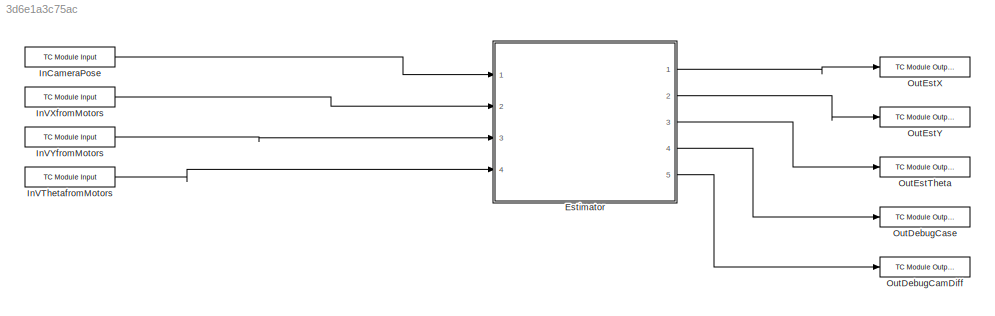
MODEL slx_3d6e1a3c75ac
KIND model
CONFIG AbsTol = auto
CONFIG EnableMultiTasking = off
CONFIG FixedStep = 10e-3
CONFIG MaxStep = auto
CONFIG MinStep = auto
CONFIG RelTol = 1e-3
CONFIG SampleTimeConstraint = Unconstrained
CONFIG SolverName = ode1
CONFIG StartTime = 0.0
CONFIG StopTime = inf
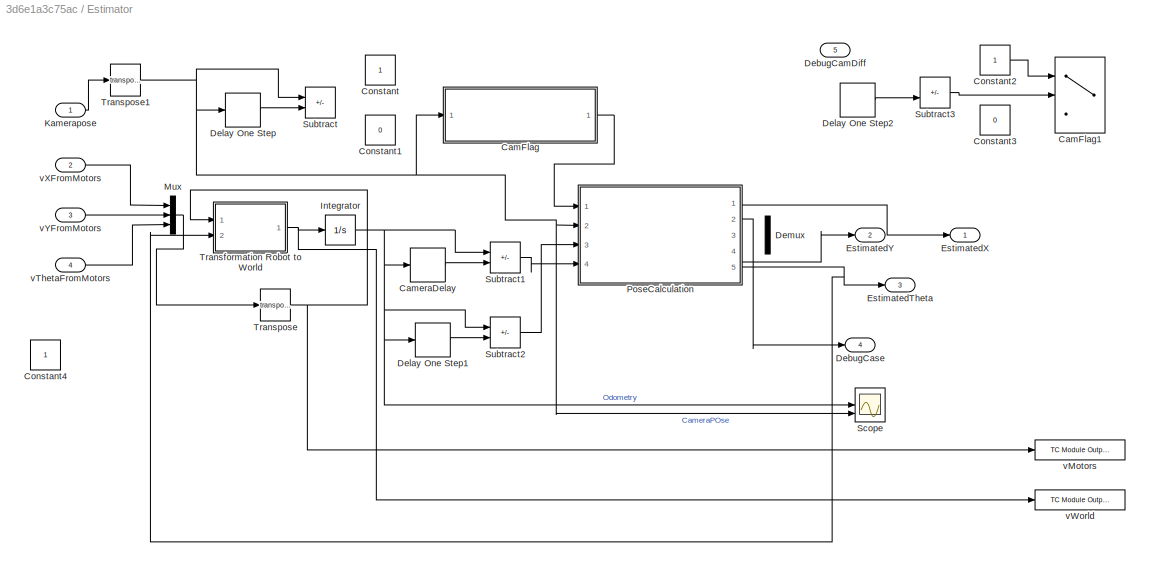
BLOCK [SubSystem] Estimator
  Ports = [4, 5]
  RequestExecContextInheritance = off
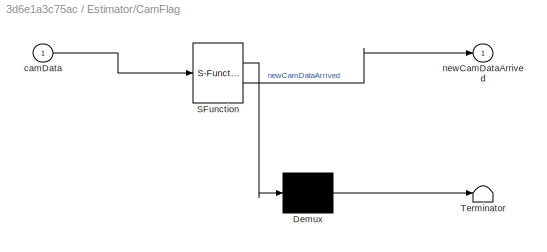
BLOCK [SubSystem] Estimator/CamFlag
  ErrorFcn = Stateflow.Translate.translate
  PermitHierarchicalResolution = ExplicitOnly
  Ports = [1, 1]
  RequestExecContextInheritance = off
  SFBlockType = MATLAB Function
  TreatAsAtomicUnit = on
BLOCK [Demux] Estimator/CamFlag/ Demux 
  Outputs = 1
  Ports = [1, 1]
BLOCK [S-Function] Estimator/CamFlag/ SFunction 
  EnableBusSupport = on
  FunctionName = sf_sfun
  PortCounts = [1 2]
  Ports = [1, 2]
  SFcnIsStateOwnerBlock = off
  SFunctionDeploymentMode = off
  Tag = Stateflow S-Function 3
BLOCK [Terminator] Estimator/CamFlag/ Terminator 
BLOCK [Inport] Estimator/CamFlag/camData
BLOCK [Outport] Estimator/CamFlag/newCamDataArrived
BLOCK [Switch] Estimator/CamFlag1
  Criteria = u2 ~= 0
  InputSameDT = off
  SaturateOnIntegerOverflow = off
BLOCK [Delay] Estimator/CameraDelay
  DelayLength = 14
  InputPortMap = u0
  Ports = [1, 1]
BLOCK [Constant] Estimator/Constant
BLOCK [Constant] Estimator/Constant1
  Value = 0
BLOCK [Constant] Estimator/Constant2
BLOCK [Constant] Estimator/Constant3
  Value = 0
BLOCK [Constant] Estimator/Constant4
BLOCK [Outport] Estimator/DebugCamDiff
  Port = 5
BLOCK [Outport] Estimator/DebugCase
  Port = 4
BLOCK [Delay] Estimator/Delay One Step
  DelayLength = 1
  InputPortMap = u0
  Ports = [1, 1]
BLOCK [Delay] Estimator/Delay One Step1
  DelayLength = 1
  InputPortMap = u0
  Ports = [1, 1]
BLOCK [Delay] Estimator/Delay One Step2
  DelayLength = 1
  InputPortMap = u0
  Ports = [1, 1]
BLOCK [Demux] Estimator/Demux
  Outputs = 3
  Ports = [1, 3]
BLOCK [Outport] Estimator/EstimatedTheta
  Port = 3
BLOCK [Outport] Estimator/EstimatedX
BLOCK [Outport] Estimator/EstimatedY
  Port = 2
BLOCK [Integrator] Estimator/Integrator
  Ports = [1, 1]
BLOCK [Inport] Estimator/Kamerapose
BLOCK [Mux] Estimator/Mux
  DisplayOption = bar
  Inputs = 3
  Ports = [3, 1]
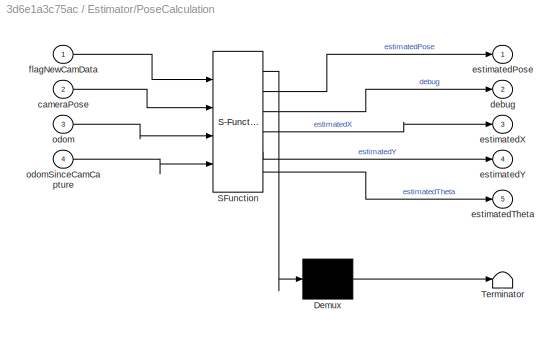
BLOCK [SubSystem] Estimator/PoseCalculation
  ErrorFcn = Stateflow.Translate.translate
  PermitHierarchicalResolution = ExplicitOnly
  Ports = [4, 5]
  RequestExecContextInheritance = off
  SFBlockType = MATLAB Function
  TreatAsAtomicUnit = on
BLOCK [Demux] Estimator/PoseCalculation/ Demux 
  Outputs = 1
  Ports = [1, 1]
BLOCK [S-Function] Estimator/PoseCalculation/ SFunction 
  EnableBusSupport = on
  FunctionName = sf_sfun
  PortCounts = [4 6]
  Ports = [4, 6]
  SFcnIsStateOwnerBlock = off
  SFunctionDeploymentMode = off
  Tag = Stateflow S-Function 1
BLOCK [Terminator] Estimator/PoseCalculation/ Terminator 
BLOCK [Inport] Estimator/PoseCalculation/cameraPose
  Port = 2
BLOCK [Outport] Estimator/PoseCalculation/debug
  Port = 2
BLOCK [Outport] Estimator/PoseCalculation/estimatedPose
BLOCK [Outport] Estimator/PoseCalculation/estimatedTheta
  Port = 5
BLOCK [Outport] Estimator/PoseCalculation/estimatedX
  Port = 3
BLOCK [Outport] Estimator/PoseCalculation/estimatedY
  Port = 4
BLOCK [Inport] Estimator/PoseCalculation/flagNewCamData
BLOCK [Inport] Estimator/PoseCalculation/odom
  Port = 3
BLOCK [Inport] Estimator/PoseCalculation/odomSinceCamCapture
  Port = 4
BLOCK [Scope] Estimator/Scope
  Floating = off
  NumInputPorts = 3
  Ports = [3]
  ScopeSpecificationString = Simulink.scopes.TimeScopeBlockCfg('CurrentConfiguration', extmgr.ConfigurationSet(extmgr.Configuration('Core','General UI',true),extmgr.Configuration('Core','Source UI',true),extmgr.Configuration('Sources','WiredSimulink',true),extmgr.Configuration('Visuals','Time Domain',true,'SerializedDisplays',{struct('MinYLimReal','-227.56341','MaxYLimReal','3844.97499','YLabelReal','','MinYLimMag',' 0.00000'...<+1897ch>
BLOCK [Sum] Estimator/Subtract
  IconShape = rectangular
  Inputs = +-
  Ports = [2, 1]
BLOCK [Sum] Estimator/Subtract1
  IconShape = rectangular
  Inputs = +-
  Ports = [2, 1]
BLOCK [Sum] Estimator/Subtract2
  IconShape = rectangular
  Inputs = +-
  Ports = [2, 1]
BLOCK [Sum] Estimator/Subtract3
  IconShape = rectangular
  Inputs = +-
  Ports = [2, 1]
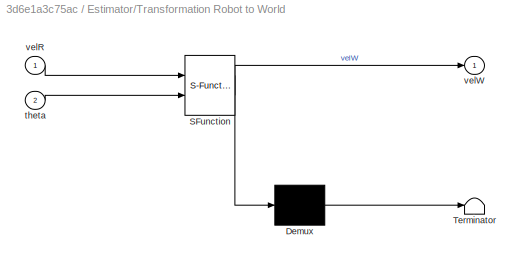
BLOCK [SubSystem] Estimator/Transformation Robot to World
  ErrorFcn = Stateflow.Translate.translate
  PermitHierarchicalResolution = ExplicitOnly
  Ports = [2, 1]
  RequestExecContextInheritance = off
  SFBlockType = MATLAB Function
  TreatAsAtomicUnit = on
BLOCK [Demux] Estimator/Transformation Robot to World/ Demux 
  Outputs = 1
  Ports = [1, 1]
BLOCK [S-Function] Estimator/Transformation Robot to World/ SFunction 
  EnableBusSupport = on
  FunctionName = sf_sfun
  PortCounts = [2 2]
  Ports = [2, 2]
  SFcnIsStateOwnerBlock = off
  SFunctionDeploymentMode = off
  Tag = Stateflow S-Function 2
BLOCK [Terminator] Estimator/Transformation Robot to World/ Terminator 
BLOCK [Inport] Estimator/Transformation Robot to World/theta
  Port = 2
BLOCK [Inport] Estimator/Transformation Robot to World/velR
BLOCK [Outport] Estimator/Transformation Robot to World/velW
BLOCK [Math] Estimator/Transpose
  Operator = transpose
  Ports = [1, 1]
BLOCK [Math] Estimator/Transpose1
  Operator = transpose
  Ports = [1, 1]
BLOCK [Reference] Estimator/vMotors  REF=TcTargetLib/TC Module Output
  Ports = [1]
  SourceBlock = TcTargetLib/TC Module Output
  SourceProductName = Beckhoff TwinCAT Target
  SourceType = TC Module Output
BLOCK [Inport] Estimator/vThetaFromMotors
  Port = 4
BLOCK [Reference] Estimator/vWorld  REF=TcTargetLib/TC Module Output
  Ports = [1]
  SourceBlock = TcTargetLib/TC Module Output
  SourceProductName = Beckhoff TwinCAT Target
  SourceType = TC Module Output
BLOCK [Inport] Estimator/vXFromMotors
  Port = 2
BLOCK [Inport] Estimator/vYFromMotors
  Port = 3
BLOCK [Reference] InCameraPose  REF=TcTargetLib/TC Module Input
  Ports = [0, 1]
  SourceBlock = TcTargetLib/TC Module Input
  SourceProductName = Beckhoff TwinCAT Target
  SourceType = TC Module Input
BLOCK [Reference] InVThetafromMotors  REF=TcTargetLib/TC Module Input
  Ports = [0, 1]
  SourceBlock = TcTargetLib/TC Module Input
  SourceProductName = Beckhoff TwinCAT Target
  SourceType = TC Module Input
BLOCK [Reference] InVXfromMotors  REF=TcTargetLib/TC Module Input
  Ports = [0, 1]
  SourceBlock = TcTargetLib/TC Module Input
  SourceProductName = Beckhoff TwinCAT Target
  SourceType = TC Module Input
BLOCK [Reference] InVYfromMotors  REF=TcTargetLib/TC Module Input
  Ports = [0, 1]
  SourceBlock = TcTargetLib/TC Module Input
  SourceProductName = Beckhoff TwinCAT Target
  SourceType = TC Module Input
BLOCK [Reference] OutDebugCamDiff  REF=TcTargetLib/TC Module Output
  Ports = [1]
  SourceBlock = TcTargetLib/TC Module Output
  SourceProductName = Beckhoff TwinCAT Target
  SourceType = TC Module Output
BLOCK [Reference] OutDebugCase  REF=TcTargetLib/TC Module Output
  Ports = [1]
  SourceBlock = TcTargetLib/TC Module Output
  SourceProductName = Beckhoff TwinCAT Target
  SourceType = TC Module Output
BLOCK [Reference] OutEstTheta  REF=TcTargetLib/TC Module Output
  Ports = [1]
  SourceBlock = TcTargetLib/TC Module Output
  SourceProductName = Beckhoff TwinCAT Target
  SourceType = TC Module Output
BLOCK [Reference] OutEstX  REF=TcTargetLib/TC Module Output
  Ports = [1]
  SourceBlock = TcTargetLib/TC Module Output
  SourceProductName = Beckhoff TwinCAT Target
  SourceType = TC Module Output
BLOCK [Reference] OutEstY  REF=TcTargetLib/TC Module Output
  Ports = [1]
  SourceBlock = TcTargetLib/TC Module Output
  SourceProductName = Beckhoff TwinCAT Target
  SourceType = TC Module Output
LINE Estimator/CamFlag:1 -> Estimator/PoseCalculation:1
LINE Estimator/CameraDelay:1 -> Estimator/Subtract1:2
LINE Estimator/Constant2:1 -> Estimator/CamFlag1:1
LINE Estimator/Delay One Step1:1 -> Estimator/Subtract2:2
LINE Estimator/Delay One Step2:1 -> Estimator/Subtract3:2
LINE Estimator/Delay One Step:1 -> Estimator/Subtract:2
NET Estimator/Integrator:1 -> Estimator/CameraDelay:1, Estimator/Delay One Step1:1, Estimator/Scope:2, Estimator/Subtract1:1, Estimator/Subtract2:1
LINE Estimator/Kamerapose:1 -> Estimator/Transpose1:1
LINE Estimator/Mux:1 -> Estimator/Transpose:1
LINE Estimator/PoseCalculation:2 -> Estimator/DebugCase:1
LINE Estimator/PoseCalculation:3 -> Estimator/EstimatedX:1
LINE Estimator/PoseCalculation:4 -> Estimator/EstimatedY:1
NET Estimator/PoseCalculation:5 -> Estimator/EstimatedTheta:1, Estimator/Transformation Robot to World:2
LINE Estimator/Subtract1:1 -> Estimator/PoseCalculation:4
LINE Estimator/Subtract2:1 -> Estimator/PoseCalculation:3
LINE Estimator/Subtract3:1 -> Estimator/CamFlag1:2
NET Estimator/Transformation Robot to World:1 -> Estimator/Integrator:1, Estimator/vWorld:1
NET Estimator/Transpose1:1 -> Estimator/CamFlag:1, Estimator/Delay One Step:1, Estimator/PoseCalculation:2, Estimator/Scope:3, Estimator/Subtract:1
NET Estimator/Transpose:1 -> Estimator/Transformation Robot to World:1, Estimator/vMotors:1
LINE Estimator/vThetaFromMotors:1 -> Estimator/Mux:3
LINE Estimator/vXFromMotors:1 -> Estimator/Mux:1
LINE Estimator/vYFromMotors:1 -> Estimator/Mux:2
LINE Estimator:1 -> OutEstX:1
LINE Estimator:2 -> OutEstY:1
LINE Estimator:3 -> OutEstTheta:1
LINE Estimator:4 -> OutDebugCase:1
LINE Estimator:5 -> OutDebugCamDiff:1
LINE InCameraPose:1 -> Estimator:1
LINE InVThetafromMotors:1 -> Estimator:4
LINE InVXfromMotors:1 -> Estimator:2
LINE InVYfromMotors:1 -> Estimator:3
note: NET lines group one-source signal fan-out (src -> all destinations, sorted); 1:1 wires keep LINE
CHART Estimator/PoseCalculation states=1 transitions=1
  STATE_LABEL 'eML_blk_kernel()'
  STATE_LABEL 'SCRIPT:\nfunction [estimatedPose, debug, estimatedX, estimatedY, estimatedTheta]= fcn(flagNewCamData, cameraPose, odom, odomSinceCamCapture)\n\n% Variables\npersistent estPoseOld\n\nif isempty(estPoseOld)\n    estPoseOld = [0 0 0];\nend\n\n    % Case 1: Camera Flag is set (New Cameradata) and CameraData is valid\nif flagNewCamData == 1\n    estimatedPose = cameraPose(1:3) + odomSinceCamCapture;   %OdomSinceCa...<+507ch>'
CHART Estimator/Transformation Robot to World states=1 transitions=1
  STATE_LABEL 'eML_blk_kernel()'
  STATE_LABEL 'SCRIPT:\nfunction velW = fcn(velR, theta)\n    TMat = [cos(theta)    -sin(theta)   0;\n            sin(theta)    cos(theta)    0;\n            0             0             1];\n    velW = velR*transpose(TMat);\nend'
CHART Estimator/CamFlag states=1 transitions=1
  STATE_LABEL 'eML_blk_kernel()'
  STATE_LABEL 'SCRIPT:\nfunction newCamDataArrived = fcn(camData)\n\npersistent oldCamData\n\nif isempty(oldCamData)\n    oldCamData = [0 0 0];\nend\n\nif camData ~= oldCamData\n    newCamDataArrived = true;\nelse\n    newCamDataArrived = false;\n    oldCamData = camData;\nend\n'
CHART  states=0 transitions=0
CHART  states=0 transitions=0
CHART  states=0 transitions=0
